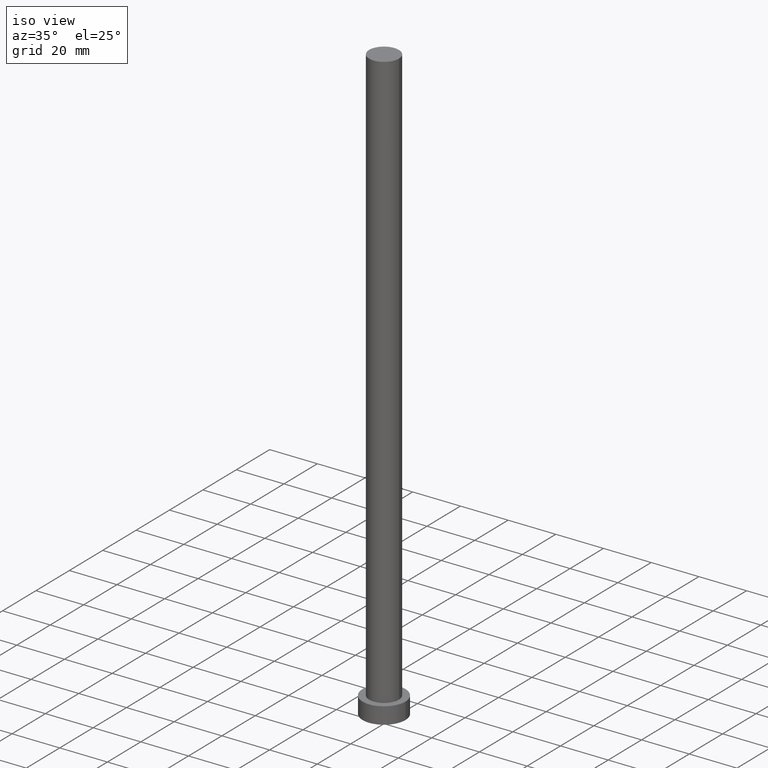
[diagram: clean part render]
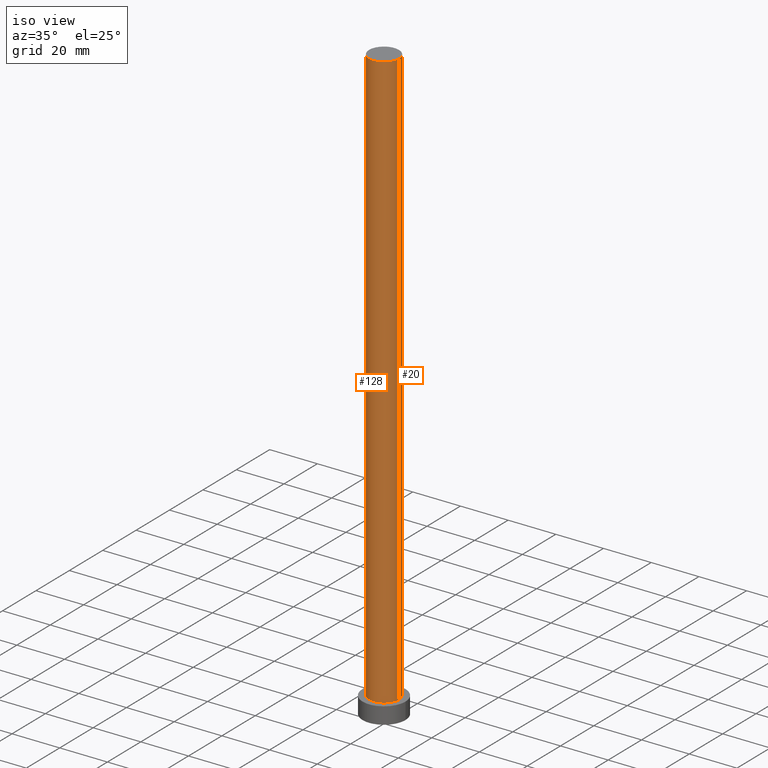
[diagram: same view with one multi-face feature highlighted, each face labeled with its STEP entity id]
A machine part, iso view. The highlighted faces form ONE feature: a constant-radius fillet chain: 2 tangent blend faces with common blend radius 6.25 mm. The faces share edges in the B-rep.
Their STEP definitions:
[1] entity #128 (Cylinder):
#4 = CARTESIAN_POINT ( 'NONE',  ( 0.000000000000000000, 0.000000000000000000, 250.0000000000000000 ) ) ;
#9 = AXIS2_PLACEMENT_3D ( 'NONE', #115, #99, #237 ) ;
#10 = DIRECTION ( 'NONE',  ( -0.000000000000000000, -0.000000000000000000, -1.000000000000000000 ) ) ;
#13 = VERTEX_POINT ( 'NONE', #150 ) ;
#21 = ORIENTED_EDGE ( 'NONE', *, *, #223, .F. ) ;
#28 = CIRCLE ( 'NONE', #189, 6.250000000000000000 ) ;
#33 = ORIENTED_EDGE ( 'NONE', *, *, #181, .T. ) ;
#35 = EDGE_CURVE ( 'NONE', #108, #98, #28, .T. ) ;
#37 = EDGE_LOOP ( 'NONE', ( #21, #149, #56, #33 ) ) ;
#40 = CYLINDRICAL_SURFACE ( 'NONE', #9, 6.250000000000000000 ) ;
#48 = CIRCLE ( 'NONE', #134, 6.250000000000000000 ) ;
#54 = CARTESIAN_POINT ( 'NONE',  ( 6.250000000000000000, 7.654042494670957606E-16, 7.000000000000000000 ) ) ;
#56 = ORIENTED_EDGE ( 'NONE', *, *, #148, .T. ) ;
#77 = DIRECTION ( 'NONE',  ( 0.000000000000000000, 0.000000000000000000, 1.000000000000000000 ) ) ;
#82 = CARTESIAN_POINT ( 'NONE',  ( 6.250000000000000000, 7.654042494670957606E-16, 250.0000000000000000 ) ) ;
#90 = VECTOR ( 'NONE', #10, 1000.000000000000000 ) ;
#98 = VERTEX_POINT ( 'NONE', #82 ) ;
#99 = DIRECTION ( 'NONE',  ( -0.000000000000000000, -0.000000000000000000, -1.000000000000000000 ) ) ;
#106 = VECTOR ( 'NONE', #184, 1000.000000000000000 ) ;
#108 = VERTEX_POINT ( 'NONE', #129 ) ;
#109 = CARTESIAN_POINT ( 'NONE',  ( -6.250000000000000000, 0.000000000000000000, 250.0000000000000000 ) ) ;
#115 = CARTESIAN_POINT ( 'NONE',  ( 0.000000000000000000, 0.000000000000000000, 250.0000000000000000 ) ) ;
#125 = DIRECTION ( 'NONE',  ( 1.000000000000000000, 0.000000000000000000, 0.000000000000000000 ) ) ;
#127 = LINE ( 'NONE', #109, #106 ) ;
#128 = ADVANCED_FACE ( 'NONE', ( #211 ), #40, .T. ) ;
#129 = CARTESIAN_POINT ( 'NONE',  ( -6.250000000000000000, 0.000000000000000000, 250.0000000000000000 ) ) ;
#134 = AXIS2_PLACEMENT_3D ( 'NONE', #191, #77, #125 ) ;
#148 = EDGE_CURVE ( 'NONE', #108, #13, #127, .T. ) ;
#149 = ORIENTED_EDGE ( 'NONE', *, *, #35, .F. ) ;
#150 = CARTESIAN_POINT ( 'NONE',  ( -6.250000000000000000, 0.000000000000000000, 7.000000000000000000 ) ) ;
#180 = LINE ( 'NONE', #209, #90 ) ;
#181 = EDGE_CURVE ( 'NONE', #13, #235, #48, .T. ) ;
#184 = DIRECTION ( 'NONE',  ( -0.000000000000000000, -0.000000000000000000, -1.000000000000000000 ) ) ;
#189 = AXIS2_PLACEMENT_3D ( 'NONE', #4, #234, #213 ) ;
#191 = CARTESIAN_POINT ( 'NONE',  ( 0.000000000000000000, 0.000000000000000000, 7.000000000000000000 ) ) ;
#209 = CARTESIAN_POINT ( 'NONE',  ( 6.250000000000000000, 7.654042494670957606E-16, 250.0000000000000000 ) ) ;
#211 = FACE_OUTER_BOUND ( 'NONE', #37, .T. ) ;
#213 = DIRECTION ( 'NONE',  ( 1.000000000000000000, 0.000000000000000000, 0.000000000000000000 ) ) ;
#223 = EDGE_CURVE ( 'NONE', #98, #235, #180, .T. ) ;
#234 = DIRECTION ( 'NONE',  ( 0.000000000000000000, 0.000000000000000000, 1.000000000000000000 ) ) ;
#235 = VERTEX_POINT ( 'NONE', #54 ) ;
#237 = DIRECTION ( 'NONE',  ( -1.000000000000000000, 0.000000000000000000, 0.000000000000000000 ) ) ;
[2] entity #20 (Cylinder):
#3 = CIRCLE ( 'NONE', #203, 6.250000000000000000 ) ;
#6 = CIRCLE ( 'NONE', #246, 6.250000000000000000 ) ;
#10 = DIRECTION ( 'NONE',  ( -0.000000000000000000, -0.000000000000000000, -1.000000000000000000 ) ) ;
#13 = VERTEX_POINT ( 'NONE', #150 ) ;
#19 = ORIENTED_EDGE ( 'NONE', *, *, #202, .F. ) ;
#20 = ADVANCED_FACE ( 'NONE', ( #24 ), #172, .T. ) ;
#24 = FACE_OUTER_BOUND ( 'NONE', #112, .T. ) ;
#54 = CARTESIAN_POINT ( 'NONE',  ( 6.250000000000000000, 7.654042494670957606E-16, 7.000000000000000000 ) ) ;
#59 = CARTESIAN_POINT ( 'NONE',  ( 0.000000000000000000, 0.000000000000000000, 7.000000000000000000 ) ) ;
#75 = ORIENTED_EDGE ( 'NONE', *, *, #148, .F. ) ;
#79 = DIRECTION ( 'NONE',  ( 0.000000000000000000, 0.000000000000000000, 1.000000000000000000 ) ) ;
#82 = CARTESIAN_POINT ( 'NONE',  ( 6.250000000000000000, 7.654042494670957606E-16, 250.0000000000000000 ) ) ;
#85 = CARTESIAN_POINT ( 'NONE',  ( 0.000000000000000000, 0.000000000000000000, 250.0000000000000000 ) ) ;
#90 = VECTOR ( 'NONE', #10, 1000.000000000000000 ) ;
#93 = DIRECTION ( 'NONE',  ( 0.000000000000000000, 0.000000000000000000, 1.000000000000000000 ) ) ;
#98 = VERTEX_POINT ( 'NONE', #82 ) ;
#106 = VECTOR ( 'NONE', #184, 1000.000000000000000 ) ;
#108 = VERTEX_POINT ( 'NONE', #129 ) ;
#109 = CARTESIAN_POINT ( 'NONE',  ( -6.250000000000000000, 0.000000000000000000, 250.0000000000000000 ) ) ;
#112 = EDGE_LOOP ( 'NONE', ( #19, #185, #143, #75 ) ) ;
#127 = LINE ( 'NONE', #109, #106 ) ;
#129 = CARTESIAN_POINT ( 'NONE',  ( -6.250000000000000000, 0.000000000000000000, 250.0000000000000000 ) ) ;
#131 = DIRECTION ( 'NONE',  ( -0.000000000000000000, -0.000000000000000000, -1.000000000000000000 ) ) ;
#136 = DIRECTION ( 'NONE',  ( 1.000000000000000000, 0.000000000000000000, 0.000000000000000000 ) ) ;
#142 = DIRECTION ( 'NONE',  ( 1.000000000000000000, 0.000000000000000000, 0.000000000000000000 ) ) ;
#143 = ORIENTED_EDGE ( 'NONE', *, *, #242, .T. ) ;
#148 = EDGE_CURVE ( 'NONE', #108, #13, #127, .T. ) ;
#150 = CARTESIAN_POINT ( 'NONE',  ( -6.250000000000000000, 0.000000000000000000, 7.000000000000000000 ) ) ;
#152 = DIRECTION ( 'NONE',  ( -1.000000000000000000, 0.000000000000000000, 0.000000000000000000 ) ) ;
#167 = CARTESIAN_POINT ( 'NONE',  ( 0.000000000000000000, 0.000000000000000000, 250.0000000000000000 ) ) ;
#172 = CYLINDRICAL_SURFACE ( 'NONE', #218, 6.250000000000000000 ) ;
#180 = LINE ( 'NONE', #209, #90 ) ;
#184 = DIRECTION ( 'NONE',  ( -0.000000000000000000, -0.000000000000000000, -1.000000000000000000 ) ) ;
#185 = ORIENTED_EDGE ( 'NONE', *, *, #223, .T. ) ;
#202 = EDGE_CURVE ( 'NONE', #98, #108, #6, .T. ) ;
#203 = AXIS2_PLACEMENT_3D ( 'NONE', #59, #93, #136 ) ;
#209 = CARTESIAN_POINT ( 'NONE',  ( 6.250000000000000000, 7.654042494670957606E-16, 250.0000000000000000 ) ) ;
#218 = AXIS2_PLACEMENT_3D ( 'NONE', #85, #131, #152 ) ;
#223 = EDGE_CURVE ( 'NONE', #98, #235, #180, .T. ) ;
#235 = VERTEX_POINT ( 'NONE', #54 ) ;
#242 = EDGE_CURVE ( 'NONE', #235, #13, #3, .T. ) ;
#246 = AXIS2_PLACEMENT_3D ( 'NONE', #167, #79, #142 ) ;